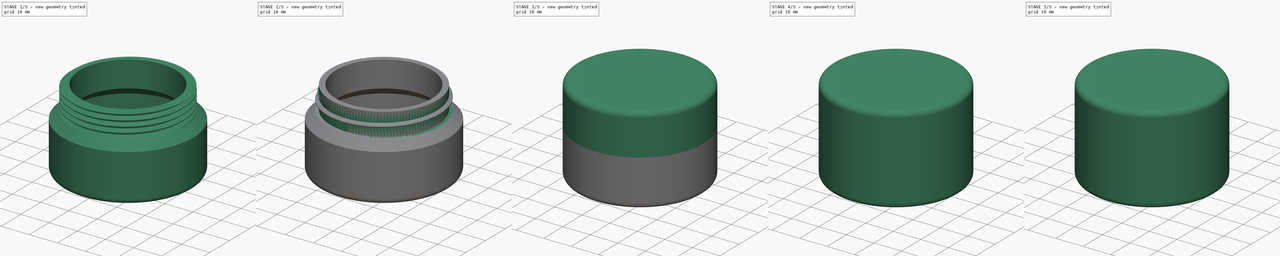
[diagram: build sequence overview — one tinted view per stage of 5, left to right]
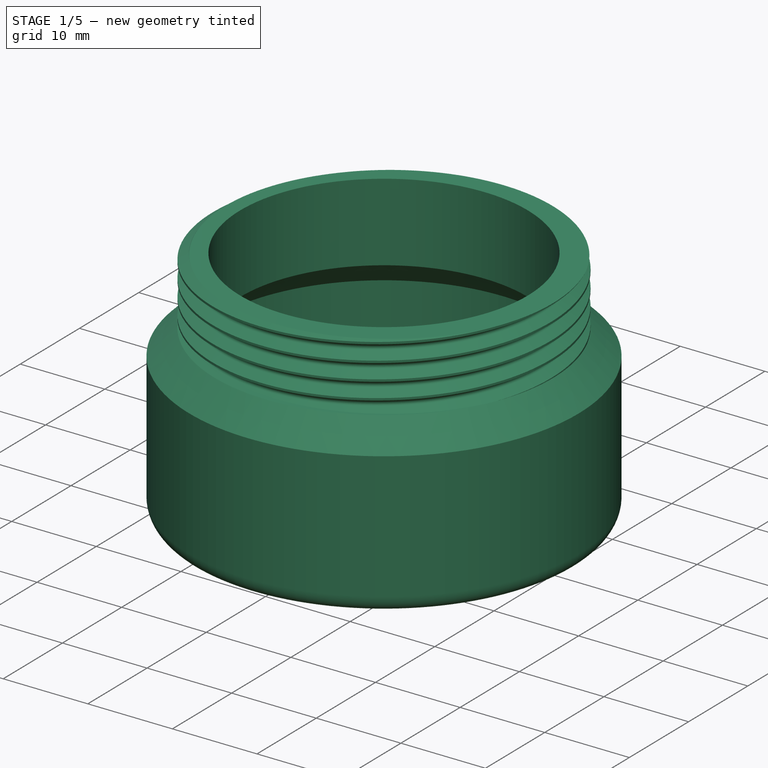
[diagram: stage 1 of 5 — iso view after this stage's code; geometry added in this stage tinted green]
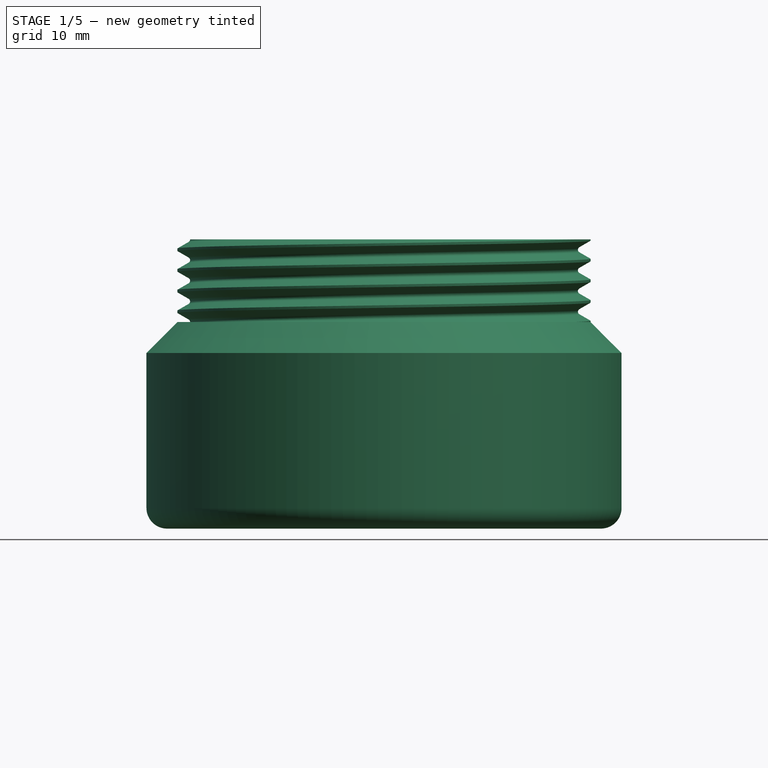
[diagram: stage 1 of 5 — front view after this stage's code; geometry added in this stage tinted green]
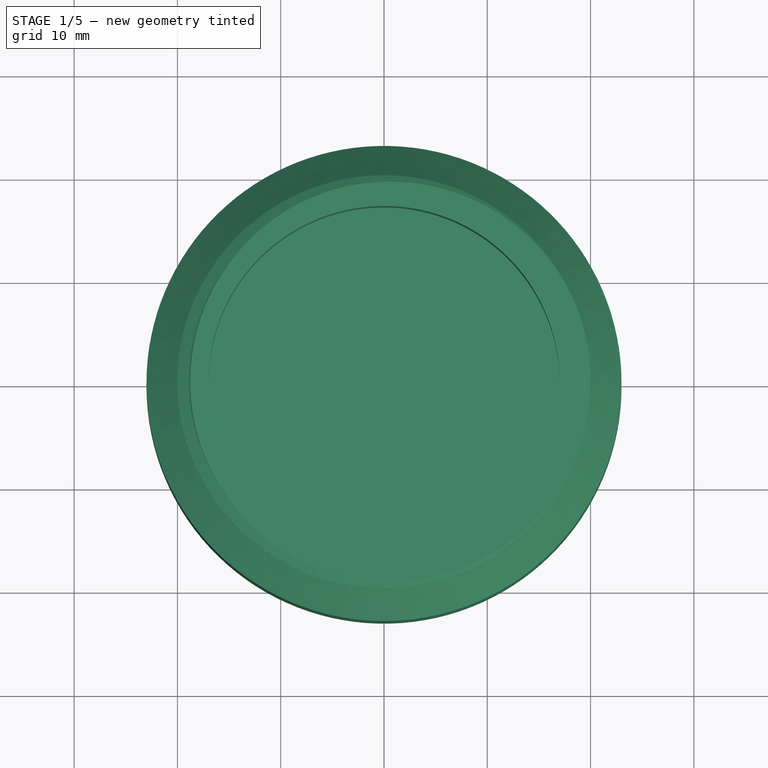
[diagram: stage 1 of 5 — top view after this stage's code; geometry added in this stage tinted green]
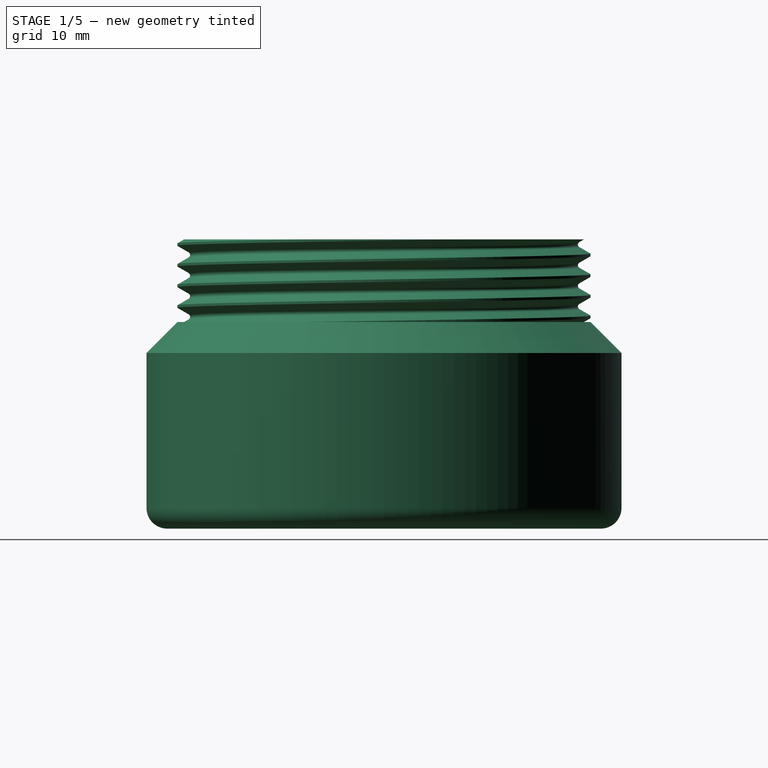
[diagram: stage 1 of 5 — right view after this stage's code; geometry added in this stage tinted green]
FCSTD DOCUMENT  (FreeCAD 1.0R39109 (Git))
Label: MakingScrewTopContainer-Easy
License: All rights reserved
LicenseURL: http://en.wikipedia.org/wiki/All_rights_reserved
objects: Sketcher::SketchObject×5, PartDesign::Revolution×4, PartDesign::Body×4, Part::FeaturePython×3, PartDesign::Boolean×3, PartDesign::AdditiveHelix×3, PartDesign::SubShapeBinder×2, PartDesign::Fillet×2
note: 52 computed .brp shape members not serialized (recipe doc carries the construction recipe); baked Part::Feature solids carry a one-line shape summary decoded from their .brp

FEATURE [Sketcher::SketchObject] Sketch
  ArcFitTolerance = 1e-06
  AttachmentSupport = -> [XZ_Plane]
  FullyConstrained = true
  MakeInternals = false
  MapMode = 5
  Placement = pos=(0,0,0) rot=(1,0,0;1.5708rad)
  sketch-geometry (15):
    g0: LineSegment StartX=0 StartY=0 StartZ=0 EndX=-21 EndY=0 EndZ=0
    g1: LineSegment StartX=-23 StartY=2 StartZ=0 EndX=-23 EndY=17 EndZ=0
    g2: LineSegment StartX=-23 StartY=17 StartZ=0 EndX=-20 EndY=20 EndZ=0
    g3: LineSegment StartX=-20 StartY=20 StartZ=0 EndX=-20 EndY=28 EndZ=0
    g4: LineSegment StartX=-20 StartY=28 StartZ=0 EndX=-17 EndY=28 EndZ=0
    g5: LineSegment StartX=-17 StartY=28 StartZ=0 EndX=-17 EndY=18.7574 EndZ=0
    g6: LineSegment StartX=-17 StartY=18.7574 StartZ=0 EndX=-20 EndY=15.7574 EndZ=0
    g7: LineSegment StartX=-20 StartY=15.7574 StartZ=0 EndX=-20 EndY=5 EndZ=0
    g8: LineSegment StartX=-18 StartY=3 StartZ=0 EndX=0 EndY=3 EndZ=0
    g9: LineSegment StartX=0 StartY=3 StartZ=0 EndX=0 EndY=0 EndZ=0
    g10: LineSegment [constr] StartX=-20 StartY=20 StartZ=0 EndX=-17.8787 EndY=17.8787 EndZ=0
    g11: ArcOfCircle CenterX=-18 CenterY=5 CenterZ=0 NormalX=0 NormalY=0 NormalZ=1 AngleXU=0 Radius=2 StartAngle=3.14159 EndAngle=4.71239
    g12: GeomPoint [constr] X=-20 Y=3 Z=0
    g13: ArcOfCircle CenterX=-21 CenterY=2 CenterZ=0 NormalX=0 NormalY=0 NormalZ=1 AngleXU=0 Radius=2 StartAngle=3.14159 EndAngle=4.71239
    g14: GeomPoint [constr] X=-23 Y=0 Z=0
  constraints (42):
    c: Coincident(g-1,g0)
    c: PointOnObject(g14,g-1)
    c: Vertical(g1)
    c: Coincident(g1,g2)
    c: Coincident(g2,g3)
    c: Vertical(g3)
    c: Coincident(g3,g4)
    c: Coincident(g4,g5)
    c: Vertical(g5)
    c: Coincident(g5,g6)
    c: Coincident(g6,g7)
    c: Horizontal(g8)
    c: Coincident(g8,g9)
    c: Coincident(g9,g0)
    c: Vertical(g9)
    c: DistanceY(g0,g8) = 3
    c: Parallel(g6,g2)
    c: DistanceX(g4,g4) = 3
    c: DistanceX(g1,g2) = 3
    c: DistanceX(g14,g12) = 3
    c: Vertical(g7)
    c: Angle(g7,g6) = 2.35619
    c: DistanceY(g14,g1) = 17
    c: DistanceY(g2,g3) = 8
    c: Horizontal(g4)
    c: DistanceX(g12,g8) = 20
    c: DistanceX(g3,g0) = 20
    c: DistanceY(g0,g2) = 20
    c: Coincident(g10,g2)
    c: PointOnObject(g10,g6)
    c: Perpendicular(g6,g10)
    c: Distance(g10,g10) = 3
    c: PointOnObject(g12,g7)
    c: PointOnObject(g12,g8)
    c: Tangent(g7,g11) = -1.5708
    c: Tangent(g8,g11) = -1.5708
    c: PointOnObject(g14,g1)
    c: PointOnObject(g14,g0)
    c: Tangent(g1,g13) = 1.5708
    c: Tangent(g0,g13) = 1.5708
    c: Equal(g13,g11)
    c: Radius(g11) = 2
FEATURE [PartDesign::Revolution] Revolution
  Angle = 360
  Angle2 = 60
  Axis = (0,2e-16,1)
  Base = (0,0,0)
  Placement = pos=(0,0,0) rot=(1,0,0;1.5708rad)
  Profile = -> Sketch
  ReferenceAxis = -> Sketch [V_Axis]
  Refine = true
  Suppressed = false
  Type = 0
FEATURE [Part::FeaturePython] ScrewDie  label="40x8-ScrewDie"  # WARN: FeaturePython — macro-defined, semantics opaque (R4)
  Diameter = 29
  DiameterCustom = 40
  Invert = false
  LeftHanded = false
  Length = 8
  MatchOuter = false
  OffsetAngle = 0
  PitchCustom = 2
  Placement = pos=(0,0,28) rot=(0,0,1;0rad)
  Thread = true
  Type = 0
FEATURE [PartDesign::Boolean] Boolean
  BaseFeature = -> Revolution
  Group = -> [ScrewDie]
  Refine = true
  Suppressed = false
  Type = 1
  UsePlacement = true
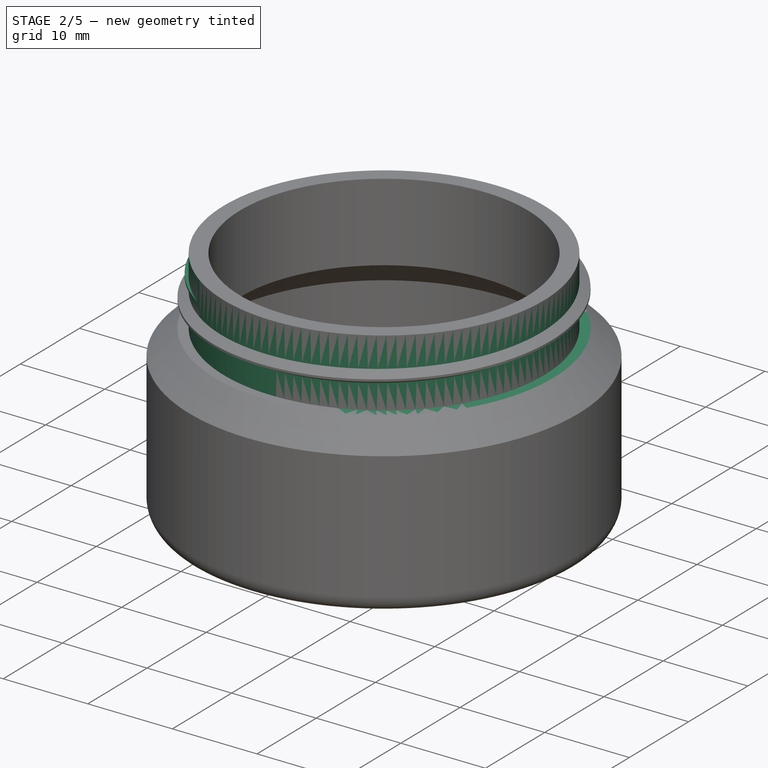
[diagram: stage 2 of 5 — iso view after this stage's code; geometry added in this stage tinted green]
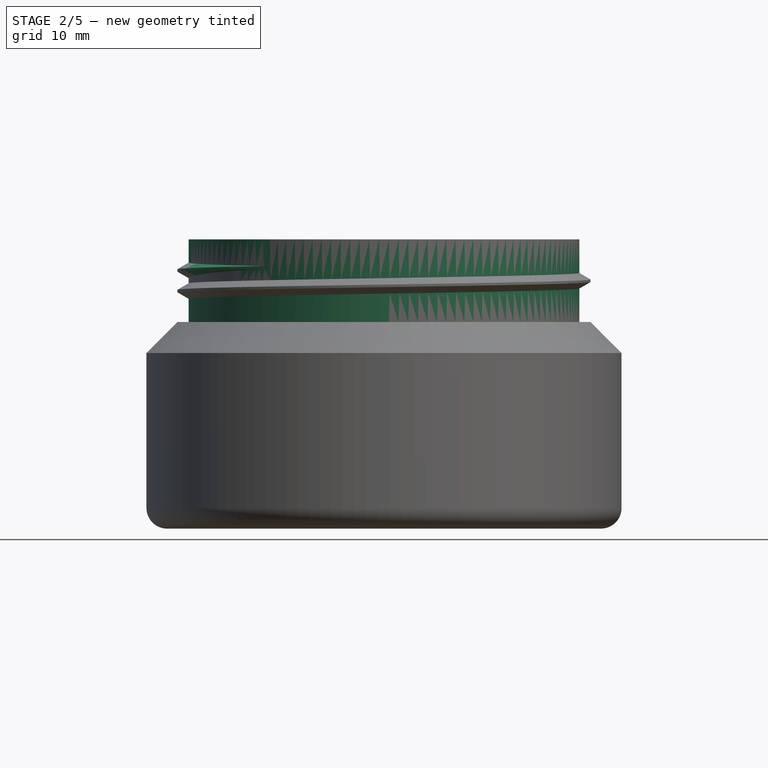
[diagram: stage 2 of 5 — front view after this stage's code; geometry added in this stage tinted green]
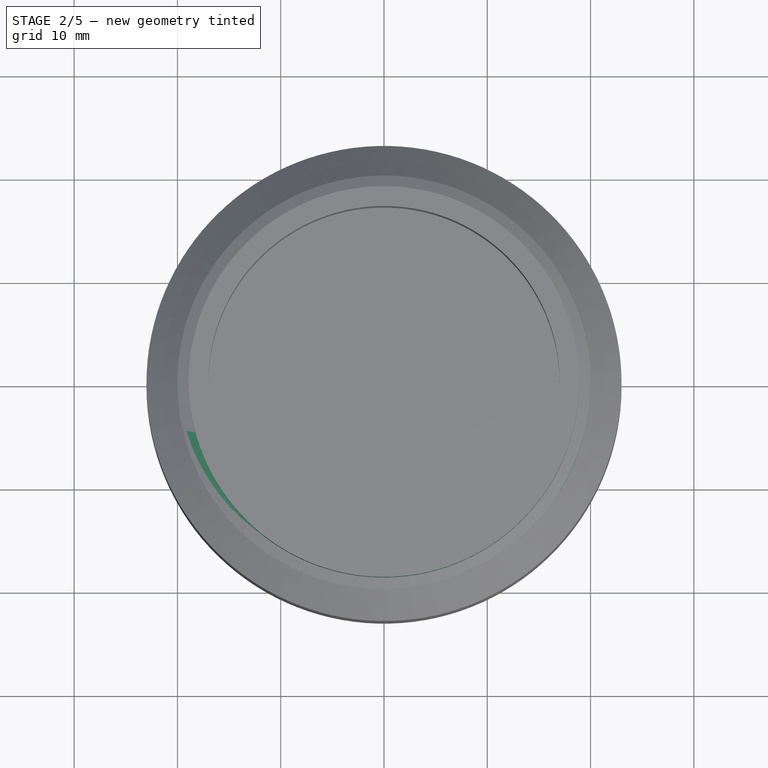
[diagram: stage 2 of 5 — top view after this stage's code; geometry added in this stage tinted green]
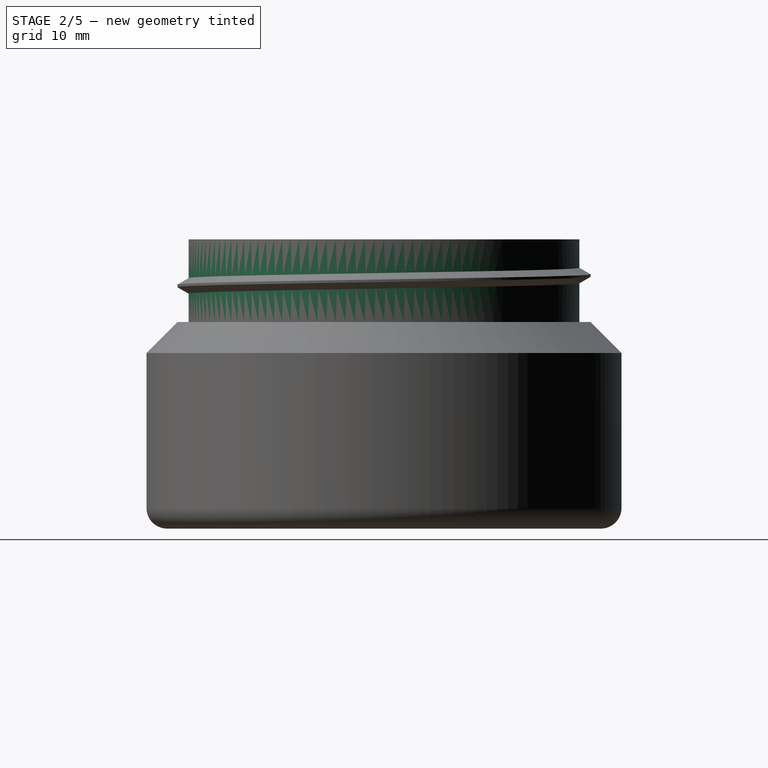
[diagram: stage 2 of 5 — right view after this stage's code; geometry added in this stage tinted green]
FEATURE [PartDesign::Body] Body002  label="Laag-06"
  AllowCompound = true
  Group = -> [Sketch003,Revolution003,Fillet002,Boolean003]
  Origin = -> Origin003
  Placement = pos=(0,0,0) rot=(0,0,1;3.14159rad)
  Tip = -> Boolean003
FEATURE [PartDesign::SubShapeBinder] Binder001
  BindCopyOnChange = 0
  BindMode = 0
  ClaimChildren = false
  Context = -> Body003 [Binder001.]
  Fuse = false
  MakeFace = true
  OffsetFill = false
  OffsetIntersection = false
  OffsetJoinType = 0
  OffsetOpenResult = false
  PartialLoad = false
  Refine = true
  Relative = true
  Support = -> [Body[Sketch.]]
  _Version = 2
FEATURE [Sketcher::SketchObject] Sketch006
  ArcFitTolerance = 1e-06
  AttachmentSupport = -> [XZ_Plane002]
  ExternalGeometry = -> [Binder001]
  FullyConstrained = true
  MakeInternals = false
  MapMode = 5
  Placement = pos=(0,0,0) rot=(1,0,0;1.5708rad)
  expr: Constraints[8] = 2 / 8
  expr: Constraints[9] = 2 * 3 / 4
  sketch-geometry (6):
    g0: LineSegment [constr] StartX=-20.2165 StartY=23 StartZ=0 EndX=-18.9175 EndY=23.75 EndZ=0
    g1: LineSegment StartX=-18.9175 StartY=23.75 StartZ=0 EndX=-18.9175 EndY=22.25 EndZ=0
    g2: LineSegment [constr] StartX=-18.9175 StartY=22.25 StartZ=0 EndX=-20.2165 EndY=23 EndZ=0
    g3: LineSegment StartX=-20 StartY=23.125 StartZ=0 EndX=-20 EndY=22.875 EndZ=0
    g4: LineSegment StartX=-20 StartY=23.125 StartZ=0 EndX=-18.9175 EndY=23.75 EndZ=0
    g5: LineSegment StartX=-20 StartY=22.875 StartZ=0 EndX=-18.9175 EndY=22.25 EndZ=0
  constraints (19):
    c: Coincident(g0,g1)
    c: Vertical(g1)
    c: Coincident(g1,g2)
    c: Coincident(g2,g0)
    c: Equal(g0,g2)
    c: Angle(g2,g0) = 1.0472
    c: PointOnObject(g3,g2)
    c: Vertical(g3)
    c: DistanceY(g3,g3) = 0.25
    c: DistanceY(g1,g1) = 1.5
    c: Coincident(g4,g3)
    c: Coincident(g4,g0)
    c: Coincident(g5,g3)
    c: Coincident(g5,g1)
    c: DistanceX(g3,g0) = 1.08253
    c: DistanceY(g-3,g0) = 3
    c: DistanceX(g0,g3) = 0.216506
    c: PointOnObject(g3,g0)
    c: PointOnObject(g3,g-3)
FEATURE [Sketcher::SketchObject] Sketch007
  ArcFitTolerance = 1e-06
  AttachmentSupport = -> [XZ_Plane002]
  ExternalGeometry = -> [Binder001,Sketch006]
  FullyConstrained = true
  MakeInternals = false
  MapMode = 5
  Placement = pos=(0,0,0) rot=(1,0,0;1.5708rad)
  sketch-geometry (13):
    g0: LineSegment StartX=-18.9175 StartY=20 StartZ=0 EndX=-20 EndY=20 EndZ=0
    g1: LineSegment StartX=-20 StartY=20 StartZ=0 EndX=-23 EndY=17 EndZ=0
    g2: LineSegment StartX=-23 StartY=17 StartZ=0 EndX=-23 EndY=2 EndZ=0
    g3: ArcOfCircle CenterX=-21 CenterY=2 CenterZ=0 NormalX=0 NormalY=0 NormalZ=1 AngleXU=0 Radius=2 StartAngle=3.14159 EndAngle=4.71239
    g4: LineSegment StartX=-21 StartY=0 StartZ=0 EndX=0 EndY=0 EndZ=0
    g5: LineSegment StartX=0 StartY=0 StartZ=0 EndX=0 EndY=3 EndZ=0
    g6: LineSegment StartX=0 StartY=3 StartZ=0 EndX=-18 EndY=3 EndZ=0
    g7: ArcOfCircle CenterX=-18 CenterY=5 CenterZ=0 NormalX=0 NormalY=0 NormalZ=1 AngleXU=0 Radius=2 StartAngle=3.14159 EndAngle=4.71239
    g8: LineSegment StartX=-20 StartY=5 StartZ=0 EndX=-20 EndY=15.7574 EndZ=0
    g9: LineSegment StartX=-20 StartY=15.7574 StartZ=0 EndX=-17 EndY=18.7574 EndZ=0
    g10: LineSegment StartX=-17 StartY=18.7574 StartZ=0 EndX=-17 EndY=28 EndZ=0
    g11: LineSegment StartX=-18.9175 StartY=28 StartZ=0 EndX=-17 EndY=28 EndZ=0
    g12: LineSegment StartX=-18.9175 StartY=28 StartZ=0 EndX=-18.9175 EndY=20 EndZ=0
  constraints (28):
    c: Coincident(g0,g-5)
    c: Coincident(g0,g1)
    c: Coincident(g1,g-7)
    c: Coincident(g1,g2)
    c: Coincident(g2,g-7)
    c: Tangent(g2,g3) = -1.5708
    c: Coincident(g3,g-9)
    c: Tangent(g3,g4) = -1.5708
    c: Coincident(g4,g5)
    c: Coincident(g5,g-8)
    c: Vertical(g5)
    c: Coincident(g5,g6)
    c: Coincident(g6,g-8)
    c: Tangent(g6,g7) = 1.5708
    c: Coincident(g7,g-6)
    c: Tangent(g7,g8) = 1.5708
    c: Coincident(g8,g9)
    c: Coincident(g9,g-3)
    c: Coincident(g9,g10)
    c: Coincident(g10,g-3)
    c: Coincident(g11,g10)
    c: Horizontal(g0)
    c: Horizontal(g11)
    c: Coincident(g12,g11)
    c: Coincident(g12,g0)
    c: Vertical(g12)
    c: PointOnObject(g-4,g12)
    c: Coincident(g8,g-6)
FEATURE [PartDesign::Revolution] Revolution004
  Angle = 360
  Angle2 = 60
  Axis = (0,2e-16,1)
  Base = (0,0,0)
  Placement = pos=(0,0,0) rot=(1,0,0;1.5708rad)
  Profile = -> Sketch007
  ReferenceAxis = -> Sketch007 [V_Axis]
  Refine = true
  Suppressed = false
  Type = 0
FEATURE [PartDesign::AdditiveHelix] AdditiveHelix
  Angle = 0
  Axis = (0,2e-16,1)
  Base = (0,0,0)
  BaseFeature = -> Revolution004
  Growth = 0
  HasBeenEdited = true
  Height = 2
  LeftHanded = false
  Mode = 1
  Outside = false
  Pitch = 2
  Placement = pos=(0,0,0) rot=(1,0,0;1.5708rad)
  Profile = -> Sketch006
  ReferenceAxis = -> Sketch006 [V_Axis]
  Refine = true
  Suppressed = false
  Tolerance = 0.1
  Turns = 1
FEATURE [PartDesign::AdditiveHelix] AdditiveHelix001
  Angle = -75
  Axis = (1e-16,1e-16,1)
  Base = (0,0,0)
  BaseFeature = -> AdditiveHelix
  Growth = -7.4641
  HasBeenEdited = true
  Height = 0.3
  LeftHanded = false
  Mode = 1
  Outside = false
  Pitch = 2
  Placement = pos=(0,0,0) rot=(1,0,0;1.5708rad)
  Profile = -> AdditiveHelix [Face9]
  ReferenceAxis = -> Z_Axis004
  Refine = true
  Suppressed = false
  Tolerance = 0.1
  Turns = 0.15
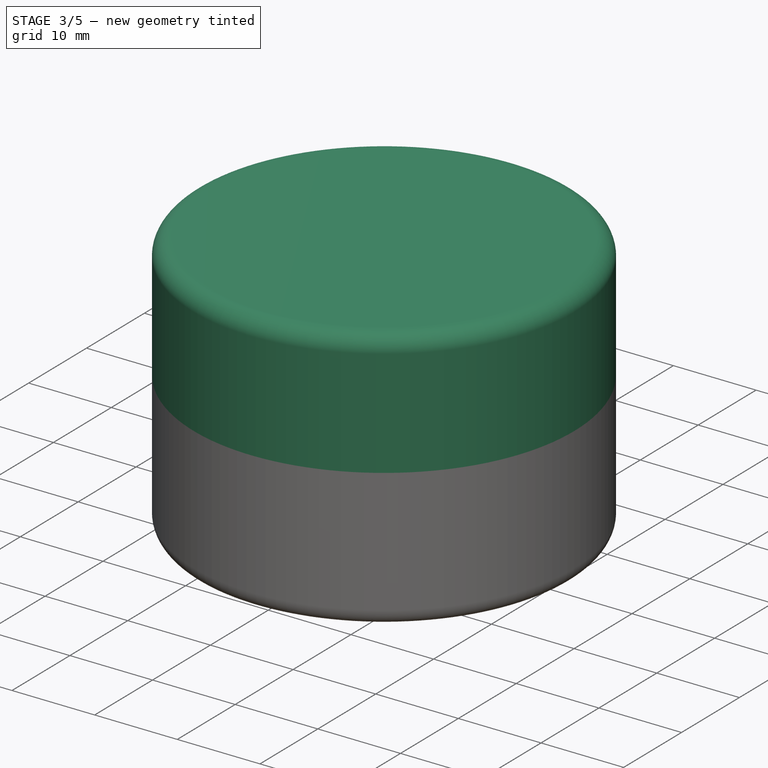
[diagram: stage 3 of 5 — iso view after this stage's code; geometry added in this stage tinted green]
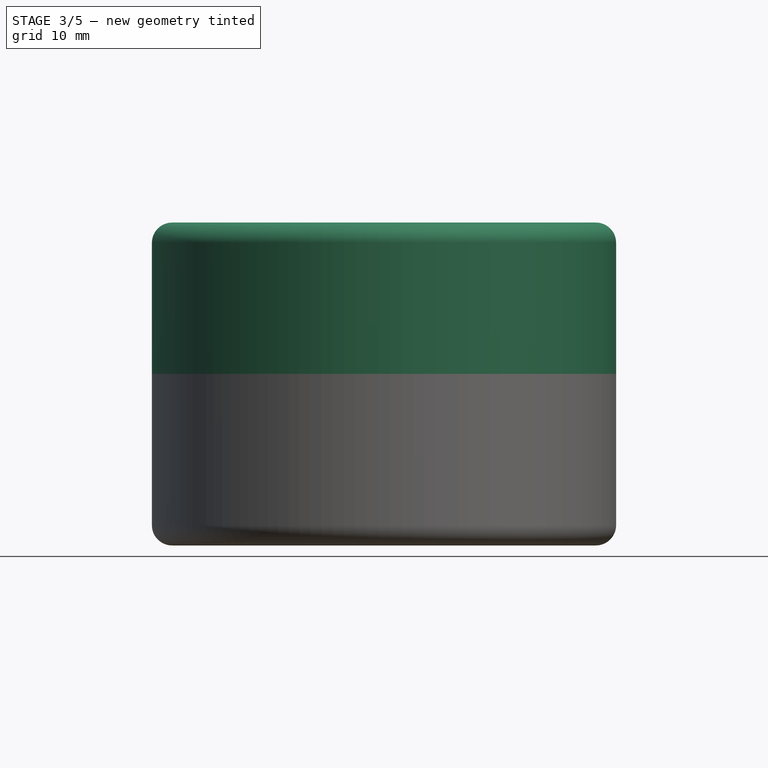
[diagram: stage 3 of 5 — front view after this stage's code; geometry added in this stage tinted green]
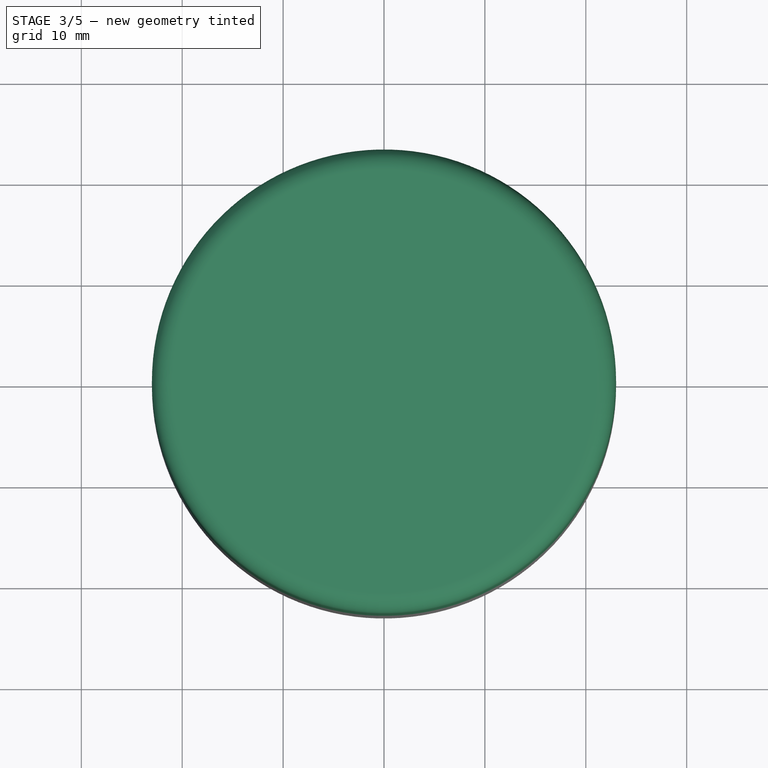
[diagram: stage 3 of 5 — top view after this stage's code; geometry added in this stage tinted green]
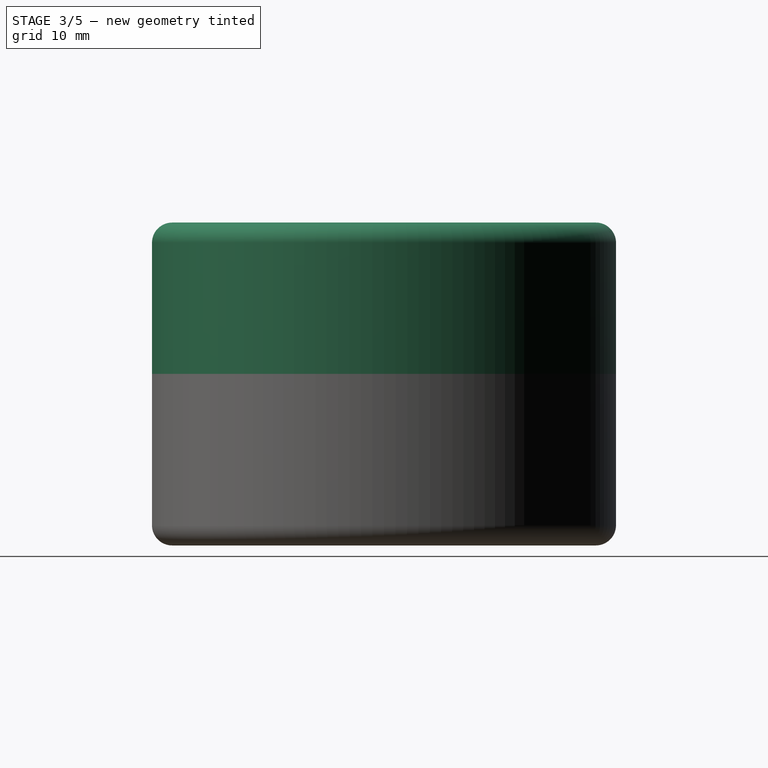
[diagram: stage 3 of 5 — right view after this stage's code; geometry added in this stage tinted green]
FEATURE [PartDesign::Body] Body001  label="Laag-08"
  AllowCompound = true
  Group = -> [Binder,Sketch001,Revolution001,Fillet001,Boolean001]
  Origin = -> Origin001
  Tip = -> Boolean001
FEATURE [Part::FeaturePython] ScrewTap001  label="40.6x10-ScrewTap"  # WARN: FeaturePython — macro-defined, semantics opaque (R4)
  Diameter = 29
  DiameterCustom = 40.6
  Invert = false
  LeftHanded = false
  Length = 10
  MatchOuter = false
  OffsetAngle = 0
  PitchCustom = 2
  Placement = pos=(0,0,30) rot=(0,0,1;0rad)
  Thread = true
  Type = 2
FEATURE [Sketcher::SketchObject] Sketch003
  ArcFitTolerance = 1e-06
  AttachmentSupport = -> [XZ_Plane001]
  ExternalGeometry = -> [Binder]
  FullyConstrained = true
  MakeInternals = false
  MapMode = 5
  Placement = pos=(0,0,0) rot=(1,0,0;1.5708rad)
  sketch-geometry (7):
    g0: LineSegment StartX=-23 StartY=17 StartZ=0 EndX=-23 EndY=30 EndZ=0
    g1: LineSegment StartX=-21 StartY=32 StartZ=0 EndX=0 EndY=32 EndZ=0
    g2: LineSegment StartX=0 StartY=32 StartZ=0 EndX=0 EndY=20 EndZ=0
    g3: LineSegment StartX=0 StartY=20 StartZ=0 EndX=-20 EndY=20 EndZ=0
    g4: LineSegment StartX=-20 StartY=20 StartZ=0 EndX=-23 EndY=17 EndZ=0
    g5: ArcOfCircle CenterX=-21 CenterY=30 CenterZ=0 NormalX=0 NormalY=0 NormalZ=1 AngleXU=0 Radius=2 StartAngle=1.5708 EndAngle=3.14159
    g6: GeomPoint [constr] X=-23 Y=32 Z=0
  constraints (17):
    c: Coincident(g-3,g0)
    c: Vertical(g0)
    c: PointOnObject(g1,g-2)
    c: Horizontal(g1)
    c: Coincident(g1,g2)
    c: Vertical(g2)
    c: Coincident(g2,g3)
    c: Coincident(g3,g-4)
    c: Horizontal(g3)
    c: Coincident(g3,g4)
    c: Coincident(g4,g0)
    c: DistanceY(g-4,g6) = 4
    c: PointOnObject(g6,g1)
    c: PointOnObject(g6,g0)
    c: Tangent(g1,g5) = 1.5708
    c: Tangent(g0,g5) = 1.5708
    c: Radius(g5) = 2
FEATURE [PartDesign::Revolution] Revolution003
  Angle = 360
  Angle2 = 60
  Axis = (0,2e-16,1)
  Base = (0,0,0)
  Placement = pos=(0,0,0) rot=(1,0,0;1.5708rad)
  Profile = -> Sketch003
  ReferenceAxis = -> Sketch003 [V_Axis]
  Refine = true
  Suppressed = false
  Type = 0
FEATURE [PartDesign::AdditiveHelix] AdditiveHelix002
  Angle = -75
  Axis = (1e-16,1e-16,1)
  Base = (0,0,0)
  BaseFeature = -> AdditiveHelix001
  Growth = -7.4641
  HasBeenEdited = true
  Height = 0.3
  LeftHanded = false
  Mode = 1
  Outside = false
  Pitch = 2
  Placement = pos=(0,0,0) rot=(1,0,0;1.5708rad)
  Profile = -> AdditiveHelix001 [Face9]
  ReferenceAxis = -> Z_Axis004
  Refine = true
  Reversed = true
  Suppressed = false
  Tolerance = 0.1
  Turns = 0.15
FEATURE [PartDesign::Body] Body003  label="Beholder_1turn"
  AllowCompound = true
  Group = -> [Binder001,Sketch006,Sketch007,Revolution004,AdditiveHelix,AdditiveHelix001,AdditiveHelix002]
  Origin = -> Origin004
  Tip = -> AdditiveHelix002
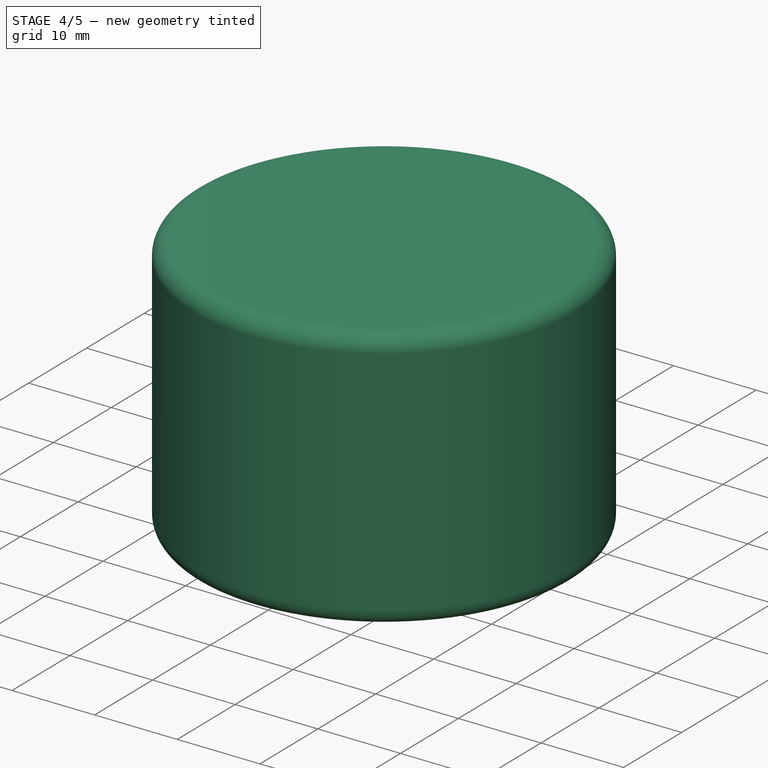
[diagram: stage 4 of 5 — iso view after this stage's code; geometry added in this stage tinted green]
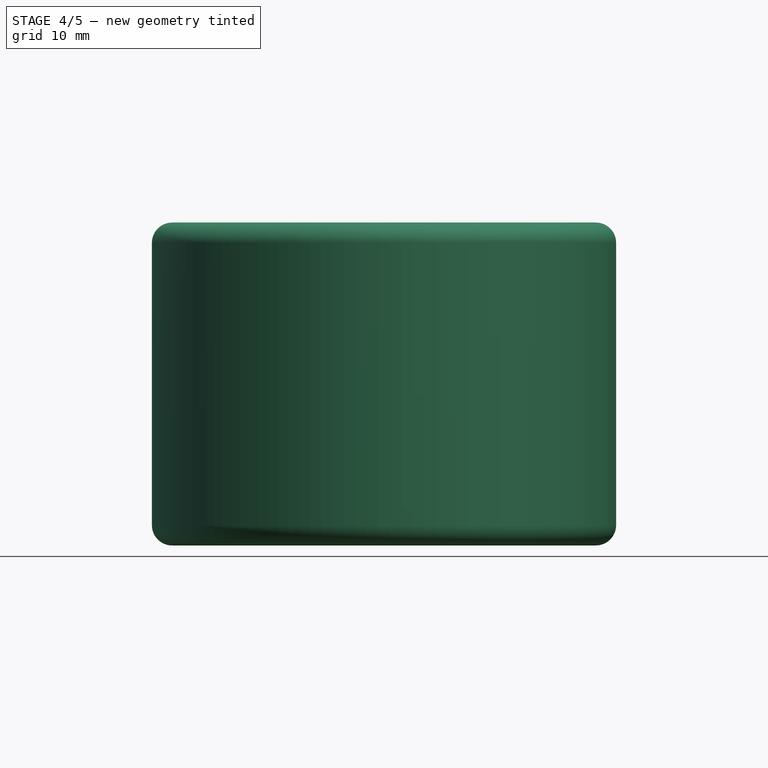
[diagram: stage 4 of 5 — front view after this stage's code; geometry added in this stage tinted green]
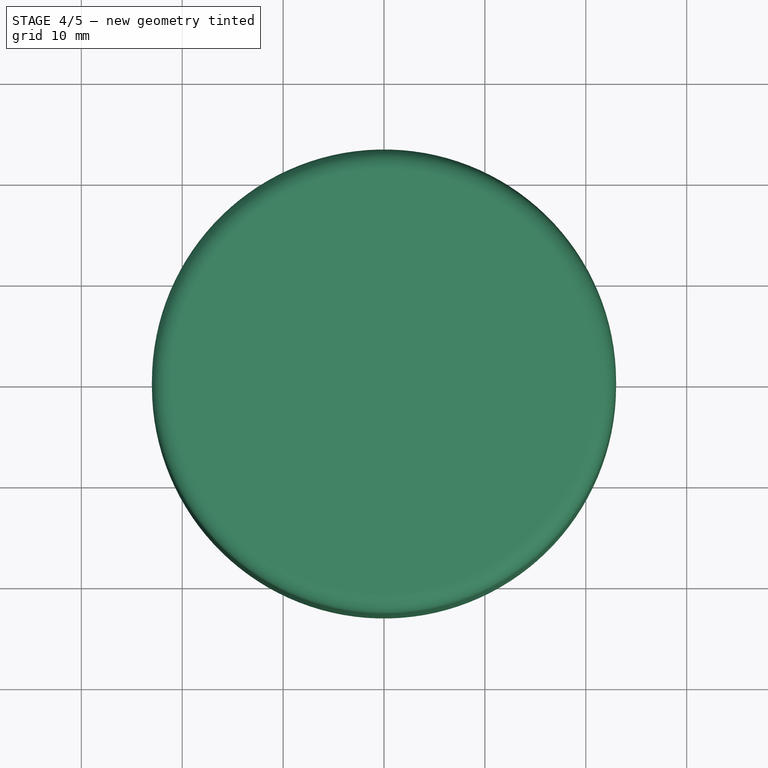
[diagram: stage 4 of 5 — top view after this stage's code; geometry added in this stage tinted green]
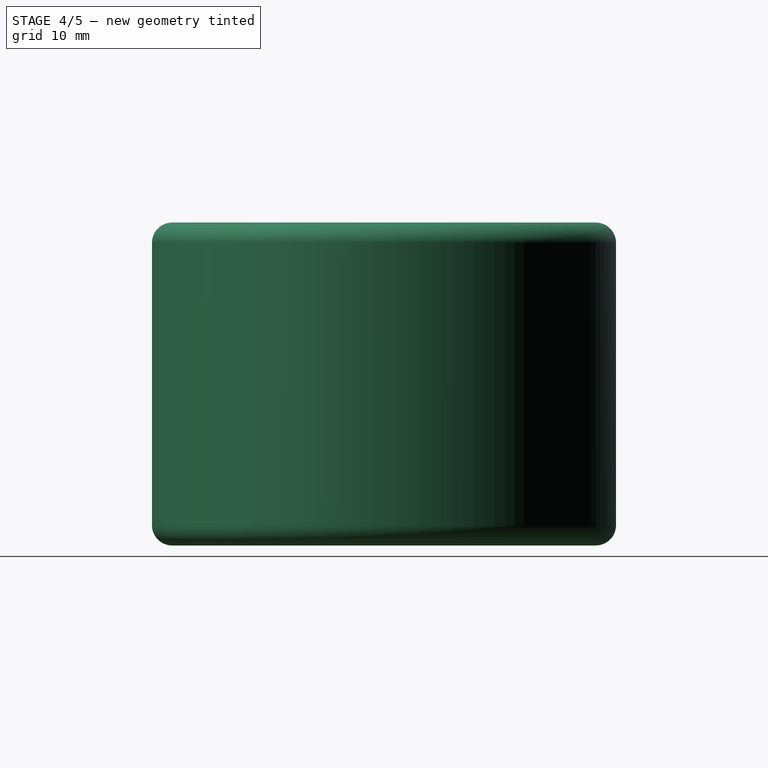
[diagram: stage 4 of 5 — right view after this stage's code; geometry added in this stage tinted green]
FEATURE [Part::FeaturePython] ScrewTap  label="40.8x10-ScrewTap"  # WARN: FeaturePython — macro-defined, semantics opaque (R4)
  Diameter = 29
  DiameterCustom = 40.8
  Invert = false
  LeftHanded = false
  Length = 10
  MatchOuter = false
  OffsetAngle = 0
  PitchCustom = 2
  Placement = pos=(0,0,30) rot=(0,0,1;0rad)
  Thread = true
  Type = 2
FEATURE [PartDesign::Fillet] Fillet002
  Base = -> Revolution003 [Edge2]
  BaseFeature = -> Revolution003
  Placement = pos=(0,0,0) rot=(1,0,0;1.5708rad)
  Radius = 1
  Refine = true
  SupportTransform = false
  Suppressed = false
  UseAllEdges = false
FEATURE [PartDesign::Boolean] Boolean003
  BaseFeature = -> Fillet002
  Group = -> [ScrewTap001]
  Refine = true
  Suppressed = false
  Type = 1
  UsePlacement = true
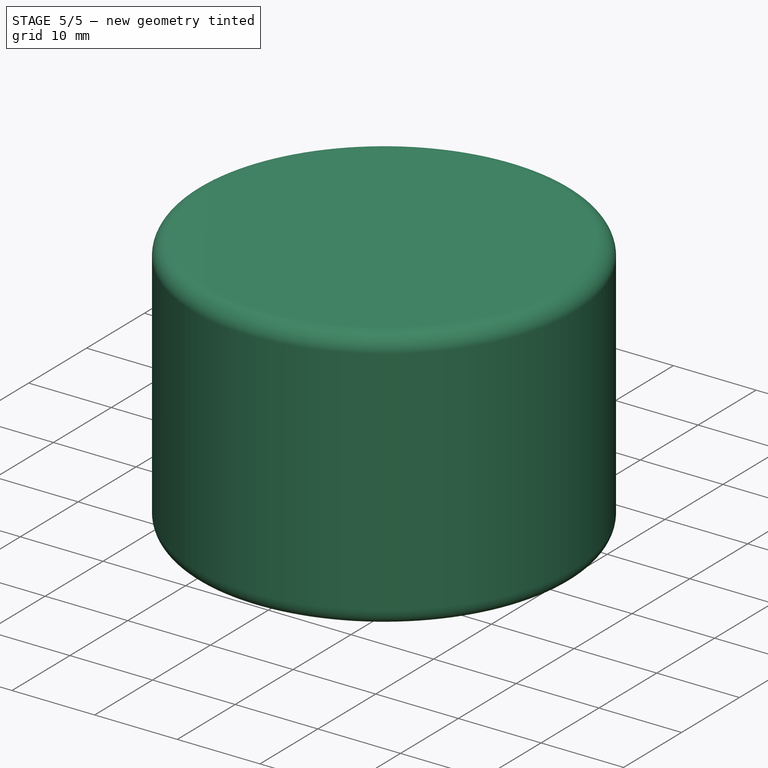
[diagram: stage 5 of 5 — iso view after this stage's code; geometry added in this stage tinted green]
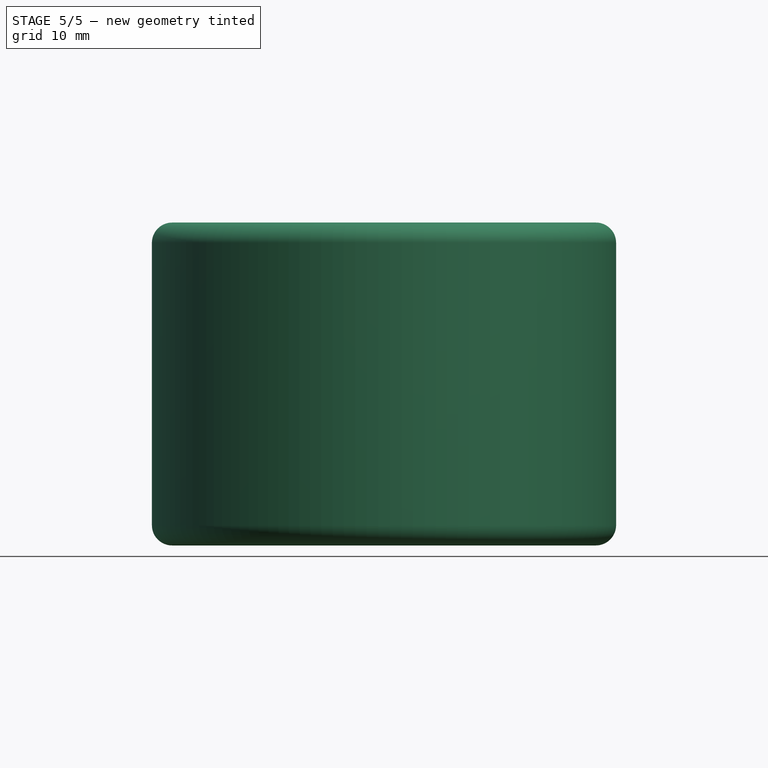
[diagram: stage 5 of 5 — front view after this stage's code; geometry added in this stage tinted green]
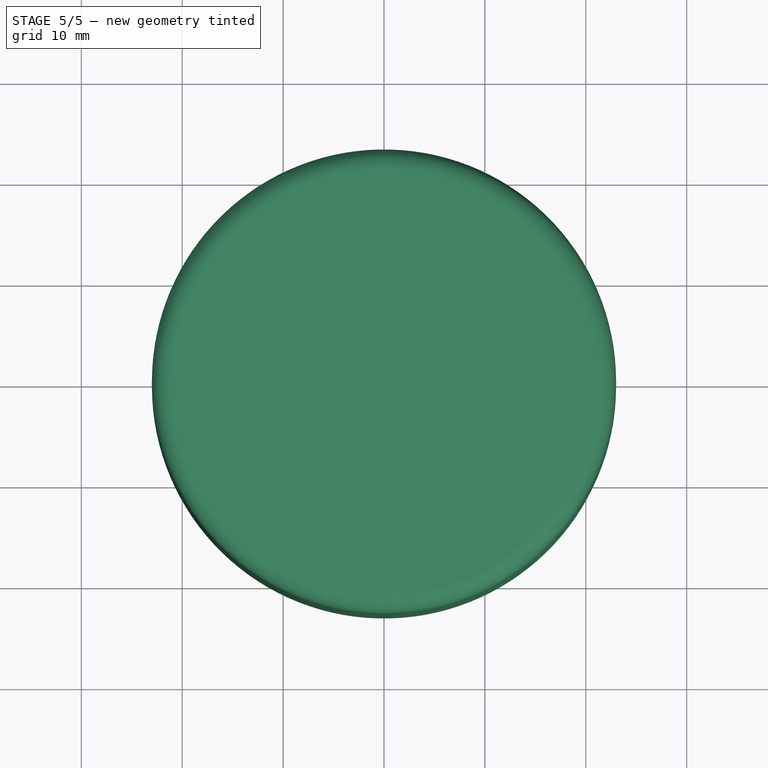
[diagram: stage 5 of 5 — top view after this stage's code; geometry added in this stage tinted green]
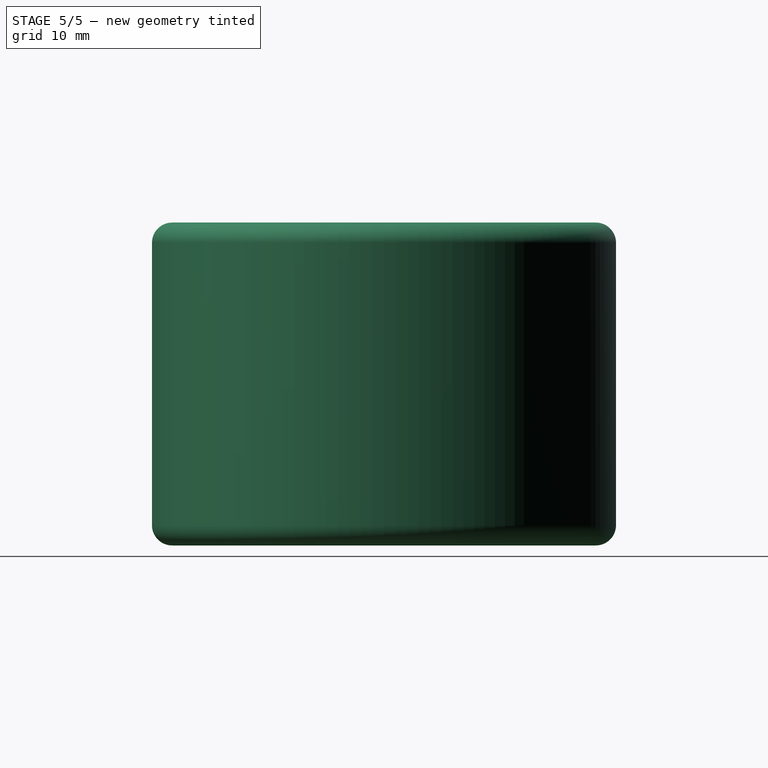
[diagram: stage 5 of 5 — right view after this stage's code; geometry added in this stage tinted green]
FEATURE [PartDesign::Body] Body  label="Beholder"
  AllowCompound = true
  Group = -> [Sketch,Revolution,Boolean]
  Origin = -> Origin
  Tip = -> Boolean
FEATURE [PartDesign::SubShapeBinder] Binder
  BindCopyOnChange = 0
  BindMode = 0
  ClaimChildren = false
  Context = -> Body001 [Binder.]
  Fuse = false
  MakeFace = true
  OffsetFill = false
  OffsetIntersection = false
  OffsetJoinType = 0
  OffsetOpenResult = false
  PartialLoad = false
  Refine = true
  Relative = true
  Support = -> [Body[Sketch.]]
  _Version = 2
FEATURE [Sketcher::SketchObject] Sketch001
  ArcFitTolerance = 1e-06
  AttachmentSupport = -> [XZ_Plane001]
  ExternalGeometry = -> [Binder]
  FullyConstrained = true
  MakeInternals = false
  MapMode = 5
  Placement = pos=(0,0,0) rot=(1,0,0;1.5708rad)
  sketch-geometry (7):
    g0: LineSegment StartX=-23 StartY=17 StartZ=0 EndX=-23 EndY=30 EndZ=0
    g1: LineSegment StartX=-21 StartY=32 StartZ=0 EndX=0 EndY=32 EndZ=0
    g2: LineSegment StartX=0 StartY=32 StartZ=0 EndX=0 EndY=20 EndZ=0
    g3: LineSegment StartX=0 StartY=20 StartZ=0 EndX=-20 EndY=20 EndZ=0
    g4: LineSegment StartX=-20 StartY=20 StartZ=0 EndX=-23 EndY=17 EndZ=0
    g5: ArcOfCircle CenterX=-21 CenterY=30 CenterZ=0 NormalX=0 NormalY=0 NormalZ=1 AngleXU=0 Radius=2 StartAngle=1.5708 EndAngle=3.14159
    g6: GeomPoint [constr] X=-23 Y=32 Z=0
  constraints (17):
    c: Coincident(g-3,g0)
    c: Vertical(g0)
    c: PointOnObject(g1,g-2)
    c: Horizontal(g1)
    c: Coincident(g1,g2)
    c: Vertical(g2)
    c: Coincident(g2,g3)
    c: Coincident(g3,g-4)
    c: Horizontal(g3)
    c: Coincident(g3,g4)
    c: Coincident(g4,g0)
    c: DistanceY(g-4,g6) = 4
    c: PointOnObject(g6,g1)
    c: PointOnObject(g6,g0)
    c: Tangent(g1,g5) = 1.5708
    c: Tangent(g0,g5) = 1.5708
    c: Radius(g5) = 2
FEATURE [PartDesign::Revolution] Revolution001
  Angle = 360
  Angle2 = 60
  Axis = (0,2e-16,1)
  Base = (0,0,0)
  Placement = pos=(0,0,0) rot=(1,0,0;1.5708rad)
  Profile = -> Sketch001
  ReferenceAxis = -> Sketch001 [V_Axis]
  Refine = true
  Suppressed = false
  Type = 0
FEATURE [PartDesign::Fillet] Fillet001
  Base = -> Revolution001 [Edge2]
  BaseFeature = -> Revolution001
  Placement = pos=(0,0,0) rot=(1,0,0;1.5708rad)
  Radius = 1
  Refine = true
  SupportTransform = false
  Suppressed = false
  UseAllEdges = false
FEATURE [PartDesign::Boolean] Boolean001
  BaseFeature = -> Fillet001
  Group = -> [ScrewTap]
  Refine = true
  Suppressed = false
  Type = 1
  UsePlacement = true
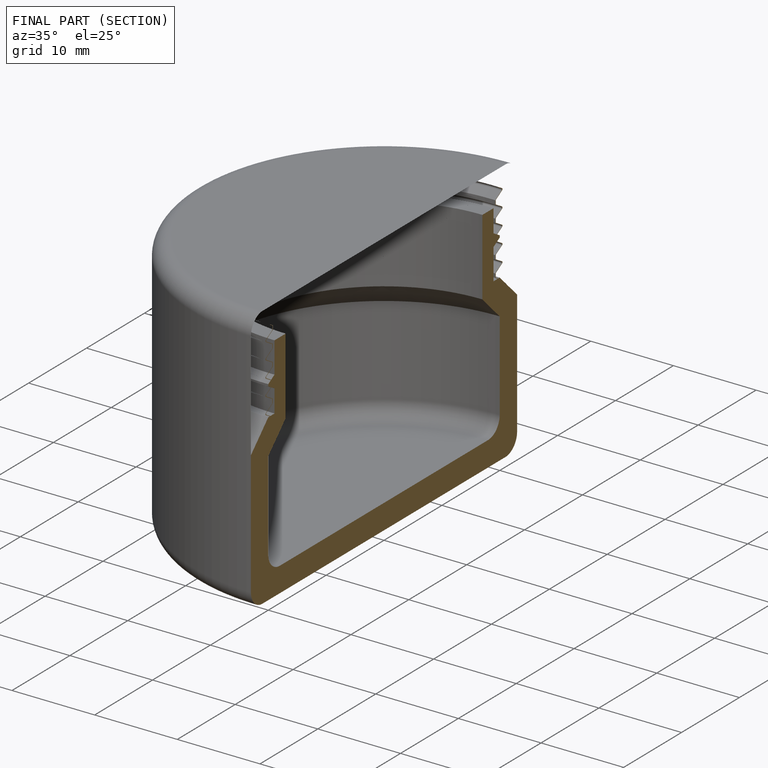
[diagram: finished part — half-section view (interior)]
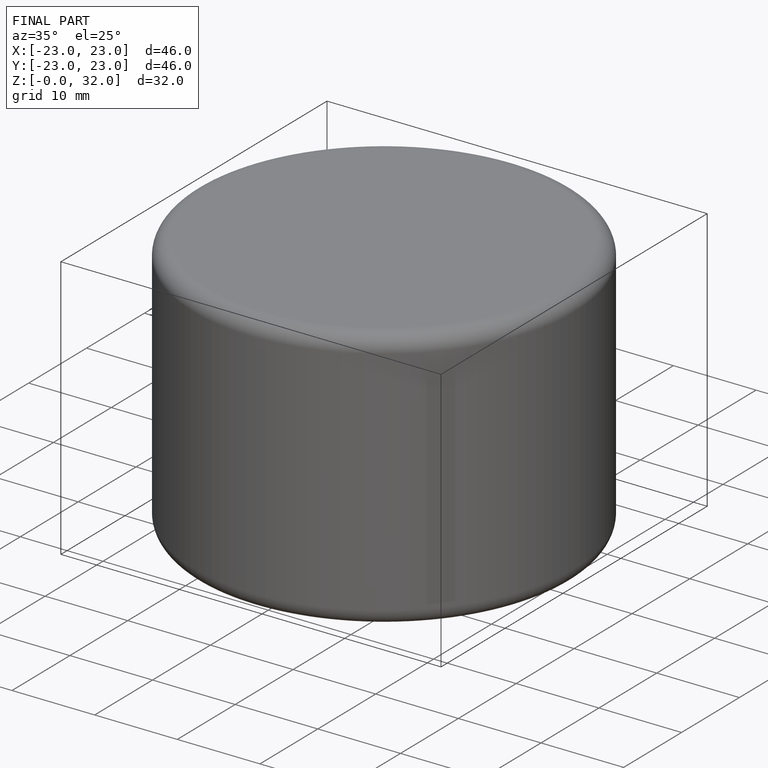
[diagram: finished part — iso view with bounding-box wireframe]
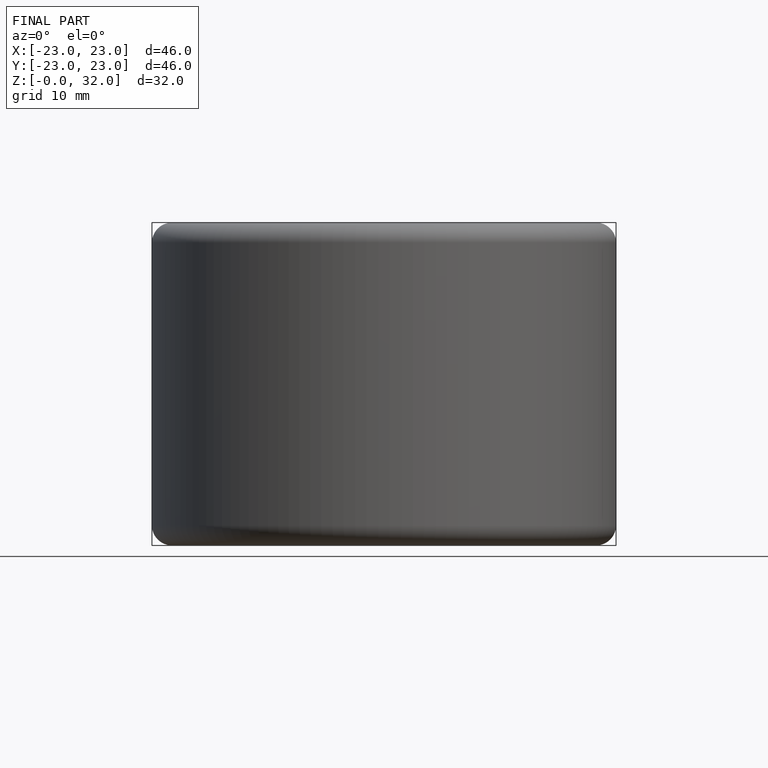
[diagram: finished part — front view with bounding-box wireframe]
